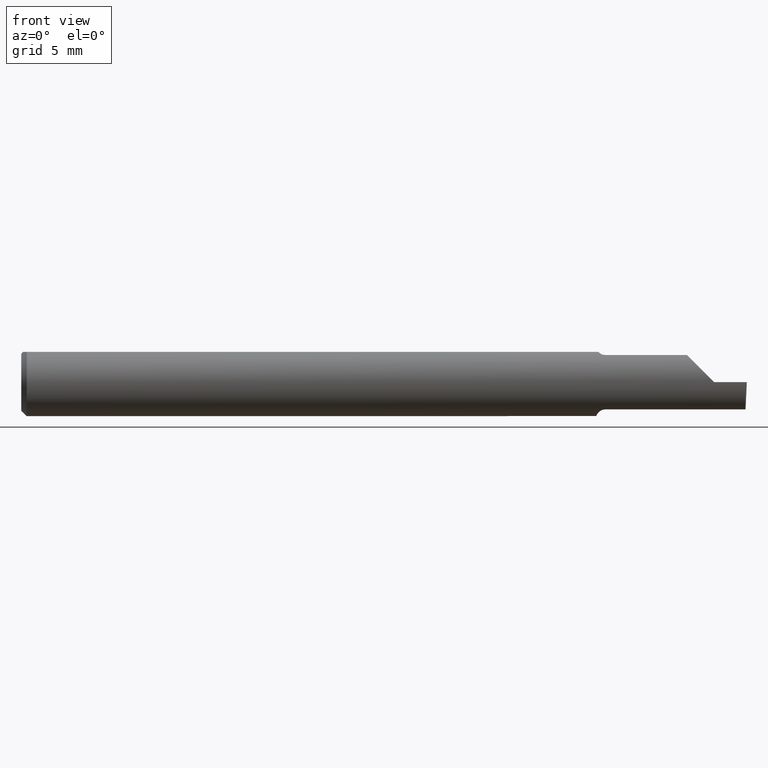
[diagram: clean part render]
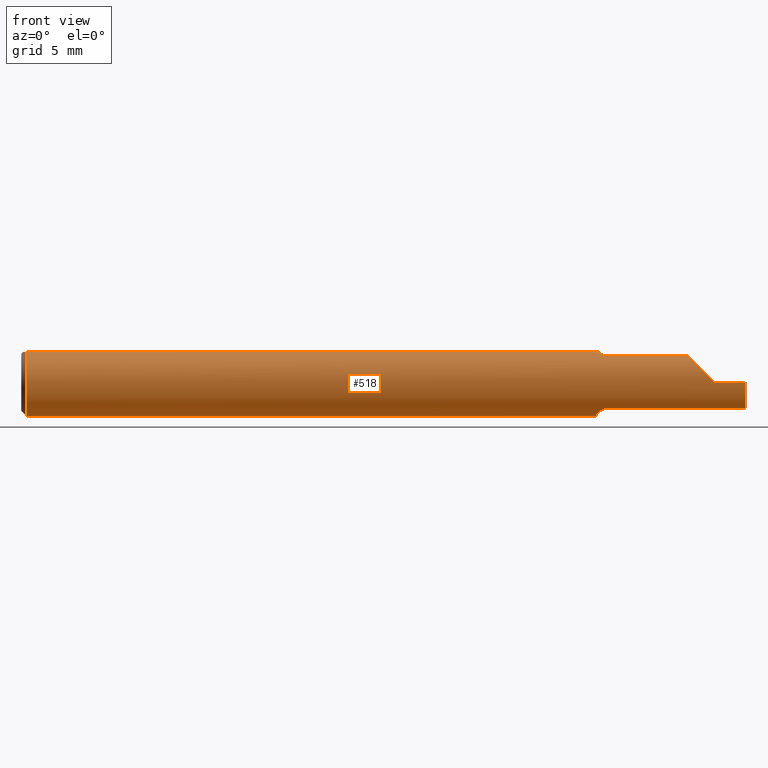
[diagram: same view with one face highlighted and labeled with its STEP entity id]
A machine part, front view. The second image highlights one B-rep face of the part: STEP entity #518.
In plain terms, the highlighted cylindrical surface (edge-blend (fillet) strip) has radius 2.3774 mm, axis along (-1, -0, -0).
Its self-contained STEP definition (entity closure, byte-faithful):
#1 = FACE_OUTER_BOUND ( 'NONE', #619, .T. ) ;
#4 = CARTESIAN_POINT ( 'NONE',  ( 1.591356684838558300, -0.04259999999999997122, -0.08334386600104412568 ) ) ;
#13 = EDGE_CURVE ( 'NONE', #521, #623, #548, .T. ) ;
#33 = VERTEX_POINT ( 'NONE', #618 ) ;
#43 = VERTEX_POINT ( 'NONE', #320 ) ;
#47 = CARTESIAN_POINT ( 'NONE',  ( 0.01499999999999999944, -0.04209513035969836975, 0.08359999999999999376 ) ) ;
#54 = ORIENTED_EDGE ( 'NONE', *, *, #311, .F. ) ;
#57 = VERTEX_POINT ( 'NONE', #558 ) ;
#58 = CARTESIAN_POINT ( 'NONE',  ( 0.000000000000000000, 0.000000000000000000, 0.000000000000000000 ) ) ;
#63 = CARTESIAN_POINT ( 'NONE',  ( 1.605389671955115727, -0.05750350940205799927, -0.07386306649500064270 ) ) ;
#64 = CARTESIAN_POINT ( 'NONE',  ( 0.000000000000000000, 0.04209513035969836975, 0.08359999999999999376 ) ) ;
#66 = CARTESIAN_POINT ( 'NONE',  ( 1.599728336617688651, -0.05428341532129050961, -0.07627162539867091140 ) ) ;
#70 = CARTESIAN_POINT ( 'NONE',  ( 1.792249999999999899, -0.05810704225352112534, -0.07337936794867826185 ) ) ;
#73 = CARTESIAN_POINT ( 'NONE',  ( 1.609999999999999654, -0.05810704225352114616, 0.07337936794867824797 ) ) ;
#76 = ORIENTED_EDGE ( 'NONE', *, *, #250, .F. ) ;
#79 = CARTESIAN_POINT ( 'NONE',  ( 1.607655343791670077, -0.05810704225352127106, 0.07337936794867813695 ) ) ;
#97 = CARTESIAN_POINT ( 'NONE',  ( 1.910000000000000142, -0.09359999999999998876, 1.102182119232621301E-17 ) ) ;
#111 = VECTOR ( 'NONE', #657, 39.37007874015748143 ) ;
#112 = CARTESIAN_POINT ( 'NONE',  ( 1.880893035518783396, -0.09359999999999998876, 0.02910696448121675300 ) ) ;
#117 = B_SPLINE_CURVE_WITH_KNOTS ( 'NONE', 3,
 ( #369, #181, #63, #616, #66, #307, #539, #4 ),
 .UNSPECIFIED., .F., .F.,
 ( 4, 2, 2, 4 ),
 ( 1.968126669309311202E-07, 0.0001761966947278539039, 0.0003521965767887768836, 0.0007041963409106363411 ),
 .UNSPECIFIED. ) ;
#127 = ORIENTED_EDGE ( 'NONE', *, *, #774, .F. ) ;
#135 = B_SPLINE_CURVE_WITH_KNOTS ( 'NONE', 3,
 ( #691, #213, #687, #450 ),
 .UNSPECIFIED., .F., .F.,
 ( 4, 4 ),
 ( 4.741820243502701581E-07, 1.584523690453573094E-05 ),
 .UNSPECIFIED. ) ;
#143 = CARTESIAN_POINT ( 'NONE',  ( 1.593098441794897902, -0.04641417426599063478, 0.08139430652501544738 ) ) ;
#149 = B_SPLINE_CURVE_WITH_KNOTS ( 'NONE', 3,
 ( #313, #679, #185, #316, #552, #662 ),
 .UNSPECIFIED., .F., .F.,
 ( 4, 2, 4 ),
 ( 0.0007041963409106363411, 0.001193146413573859584, 0.001682096486237082827 ),
 .UNSPECIFIED. ) ;
#153 = CARTESIAN_POINT ( 'NONE',  ( 1.591356684838558300, -0.04259999999999997816, 0.08334386600104415344 ) ) ;
#155 = LINE ( 'NONE', #449, #487 ) ;
#157 = CARTESIAN_POINT ( 'NONE',  ( 1.595259025420518784, -0.04992838138009422083, 0.07925011723318650669 ) ) ;
#165 = VECTOR ( 'NONE', #573, 39.37007874015748143 ) ;
#169 = CARTESIAN_POINT ( 'NONE',  ( 1.609999999999999654, -0.05810704225352111146, -0.07337936794867826185 ) ) ;
#174 = DIRECTION ( 'NONE',  ( 0.000000000000000000, 0.000000000000000000, 1.000000000000000000 ) ) ;
#175 = VERTEX_POINT ( 'NONE', #266 ) ;
#181 = CARTESIAN_POINT ( 'NONE',  ( 1.607653034764491506, -0.05810704225352129881, -0.07337936794867812307 ) ) ;
#185 = CARTESIAN_POINT ( 'NONE',  ( 1.587415450430337271, -0.03151229630690470518, -0.08835846806355296401 ) ) ;
#204 = CARTESIAN_POINT ( 'NONE',  ( 1.591129652885479029, -0.04209513035970094408, 0.08359999999999999376 ) ) ;
#213 = CARTESIAN_POINT ( 'NONE',  ( 1.591204482410373933, -0.04226411763296330365, 0.08351490979309549034 ) ) ;
#215 = EDGE_CURVE ( 'NONE', #57, #599, #776, .T. ) ;
#221 = ORIENTED_EDGE ( 'NONE', *, *, #295, .F. ) ;
#226 = CARTESIAN_POINT ( 'NONE',  ( 1.910000000000000142, -0.09359999999999998876, 1.102182119232621301E-17 ) ) ;
#229 = AXIS2_PLACEMENT_3D ( 'NONE', #58, #781, #602 ) ;
#231 = CARTESIAN_POINT ( 'NONE',  ( 1.591356684838558300, -0.04259999999999997122, -0.08334386600104412568 ) ) ;
#245 = DIRECTION ( 'NONE',  ( -1.000000000000000000, -0.000000000000000000, -0.000000000000000000 ) ) ;
#250 = EDGE_CURVE ( 'NONE', #604, #57, #135, .T. ) ;
#257 = ORIENTED_EDGE ( 'NONE', *, *, #491, .F. ) ;
#266 = CARTESIAN_POINT ( 'NONE',  ( 1.836620632051322310, -0.05810704225352113922, 0.07337936794867826185 ) ) ;
#269 = CARTESIAN_POINT ( 'NONE',  ( 1.599746577633803568, -0.05429945193459817521, 0.07626038032150797563 ) ) ;
#284 =( BOUNDED_CURVE ( )  B_SPLINE_CURVE ( 3, ( #522, #772, #460, #407 ),
 .UNSPECIFIED., .F., .F. ) 
 B_SPLINE_CURVE_WITH_KNOTS ( ( 4, 4 ),
 ( 0.08204942185700578317, 0.9826237902196912621 ),
 .UNSPECIFIED. ) 
 CURVE ( )  GEOMETRIC_REPRESENTATION_ITEM ( )  RATIONAL_B_SPLINE_CURVE ( ( 1.000000000000000000, 0.9335481000009943076, 0.9335481000009943076, 1.000000000000000000 ) ) 
 REPRESENTATION_ITEM ( '' )  );
#285 = CARTESIAN_POINT ( 'NONE',  ( 1.854690286057537829, -0.08092595952420826577, 0.05530971394246238237 ) ) ;
#288 = LINE ( 'NONE', #344, #318 ) ;
#291 = VERTEX_POINT ( 'NONE', #574 ) ;
#293 = CARTESIAN_POINT ( 'NONE',  ( 1.792249999999999899, -0.05810704225352112534, 0.07337936794867826185 ) ) ;
#295 = EDGE_CURVE ( 'NONE', #647, #521, #404, .T. ) ;
#302 = DIRECTION ( 'NONE',  ( -1.000000000000000000, -0.000000000000000000, -0.000000000000000000 ) ) ;
#307 = CARTESIAN_POINT ( 'NONE',  ( 1.595264545693809044, -0.04993027844100268037, -0.07924826417278514612 ) ) ;
#311 = EDGE_CURVE ( 'NONE', #599, #175, #477, .T. ) ;
#313 = CARTESIAN_POINT ( 'NONE',  ( 1.591356684838558300, -0.04259999999999997122, -0.08334386600104412568 ) ) ;
#316 = CARTESIAN_POINT ( 'NONE',  ( 1.585436655799338901, -0.01945041057485635827, -0.09177104786119411051 ) ) ;
#318 = VECTOR ( 'NONE', #411, 39.37007874015748143 ) ;
#320 = CARTESIAN_POINT ( 'NONE',  ( 1.995486889784650497, -0.05810704225352112534, -0.07337936794867826185 ) ) ;
#322 = LINE ( 'NONE', #394, #165 ) ;
#332 = CARTESIAN_POINT ( 'NONE',  ( 1.609999999999999654, -0.05810704225352114616, 0.07337936794867824797 ) ) ;
#343 = VERTEX_POINT ( 'NONE', #47 ) ;
#344 = CARTESIAN_POINT ( 'NONE',  ( 0.000000000000000000, -0.04209513035969836975, 0.08359999999999999376 ) ) ;
#346 = VERTEX_POINT ( 'NONE', #536 ) ;
#354 = VERTEX_POINT ( 'NONE', #231 ) ;
#355 = CARTESIAN_POINT ( 'NONE',  ( 1.836620632051322310, -0.05810704225352113922, 0.07337936794867826185 ) ) ;
#363 = VECTOR ( 'NONE', #245, 39.37007874015748143 ) ;
#369 = CARTESIAN_POINT ( 'NONE',  ( 1.609999999999999654, -0.05810704225352111146, -0.07337936794867826185 ) ) ;
#377 = EDGE_CURVE ( 'NONE', #623, #291, #617, .T. ) ;
#392 = AXIS2_PLACEMENT_3D ( 'NONE', #724, #302, #546 ) ;
#394 = CARTESIAN_POINT ( 'NONE',  ( 2.999519565323743132E-32, -0.09359999999999998876, 2.449293598294717754E-16 ) ) ;
#402 = CIRCLE ( 'NONE', #392, 0.09359999999999998876 ) ;
#404 = CIRCLE ( 'NONE', #645, 0.09359999999999998876 ) ;
#406 = VERTEX_POINT ( 'NONE', #97 ) ;
#407 = CARTESIAN_POINT ( 'NONE',  ( 1.996788249052547481, -0.09359999022555406945, -4.277588313357508156E-05 ) ) ;
#411 = DIRECTION ( 'NONE',  ( 1.000000000000000000, 0.000000000000000000, 0.000000000000000000 ) ) ;
#413 = VERTEX_POINT ( 'NONE', #169 ) ;
#415 = CARTESIAN_POINT ( 'NONE',  ( 0.01499999999999999944, 0.000000000000000000, 0.000000000000000000 ) ) ;
#449 = CARTESIAN_POINT ( 'NONE',  ( 1.994172072281005459, -0.09355431490906530867, -0.09996576130738767108 ) ) ;
#450 = CARTESIAN_POINT ( 'NONE',  ( 1.591356684838558300, -0.04259999999999997816, 0.08334386600104415344 ) ) ;
#455 = ORIENTED_EDGE ( 'NONE', *, *, #468, .F. ) ;
#460 = CARTESIAN_POINT ( 'NONE',  ( 1.996026586675631709, -0.09358669535931163352, -0.02913391928411206838 ) ) ;
#464 = AXIS2_PLACEMENT_3D ( 'NONE', #415, #642, #174 ) ;
#468 = EDGE_CURVE ( 'NONE', #291, #343, #402, .T. ) ;
#470 = EDGE_CURVE ( 'NONE', #413, #354, #117, .T. ) ;
#477 = LINE ( 'NONE', #293, #111 ) ;
#482 = CYLINDRICAL_SURFACE ( 'NONE', #229, 0.09359999999999998876 ) ;
#487 = VECTOR ( 'NONE', #694, 39.37007874015748854 ) ;
#491 = EDGE_CURVE ( 'NONE', #354, #647, #149, .T. ) ;
#493 =( BOUNDED_CURVE ( )  B_SPLINE_CURVE ( 3, ( #226, #112, #285, #355 ),
 .UNSPECIFIED., .F., .T. ) 
 B_SPLINE_CURVE_WITH_KNOTS ( ( 4, 4 ),
 ( 4.712388980384689674, 5.613420356061718408 ),
 .UNSPECIFIED. ) 
 CURVE ( )  GEOMETRIC_REPRESENTATION_ITEM ( )  RATIONAL_B_SPLINE_CURVE ( ( 1.000000000000000000, 0.9334817841311876530, 0.9334817841311876530, 1.000000000000000000 ) ) 
 REPRESENTATION_ITEM ( '' )  );
#504 = ORIENTED_EDGE ( 'NONE', *, *, #215, .F. ) ;
#507 = CARTESIAN_POINT ( 'NONE',  ( 1.605389214148233989, -0.05750155061631040398, 0.07386444488392698848 ) ) ;
#517 = ORIENTED_EDGE ( 'NONE', *, *, #470, .F. ) ;
#518 = ADVANCED_FACE ( 'NONE', ( #1 ), #482, .T. ) ;
#521 = VERTEX_POINT ( 'NONE', #732 ) ;
#522 = CARTESIAN_POINT ( 'NONE',  ( 1.995486889784650497, -0.05810704225352112534, -0.07337936794867826185 ) ) ;
#528 = EDGE_CURVE ( 'NONE', #43, #413, #736, .T. ) ;
#536 = CARTESIAN_POINT ( 'NONE',  ( 1.996789369178486595, -0.09359999999634724399, 1.727064904157919157E-17 ) ) ;
#539 = CARTESIAN_POINT ( 'NONE',  ( 1.593086474849918499, -0.04638796853538176834, -0.08140770120152256151 ) ) ;
#546 = DIRECTION ( 'NONE',  ( 0.000000000000000000, 0.000000000000000000, 1.000000000000000000 ) ) ;
#548 = LINE ( 'NONE', #64, #363 ) ;
#552 = CARTESIAN_POINT ( 'NONE',  ( 1.584999999999999520, -0.01308640439514264717, -0.09289765197734373148 ) ) ;
#558 = CARTESIAN_POINT ( 'NONE',  ( 1.591356684838558300, -0.04259999999999997816, 0.08334386600104415344 ) ) ;
#560 = CARTESIAN_POINT ( 'NONE',  ( 1.601469028275930517, -0.05559939362423894915, 0.07530665289274067475 ) ) ;
#570 = CARTESIAN_POINT ( 'NONE',  ( 1.584999999999999520, 0.000000000000000000, 0.000000000000000000 ) ) ;
#573 = DIRECTION ( 'NONE',  ( -1.000000000000000000, -0.000000000000000000, -0.000000000000000000 ) ) ;
#574 = CARTESIAN_POINT ( 'NONE',  ( 0.01499999999999999944, 0.000000000000000000, -0.09359999999999998876 ) ) ;
#579 = ORIENTED_EDGE ( 'NONE', *, *, #667, .T. ) ;
#593 = DIRECTION ( 'NONE',  ( 1.000000000000000000, 0.000000000000000000, 0.000000000000000000 ) ) ;
#599 = VERTEX_POINT ( 'NONE', #73 ) ;
#602 = DIRECTION ( 'NONE',  ( 0.000000000000000000, 0.000000000000000000, 1.000000000000000000 ) ) ;
#604 = VERTEX_POINT ( 'NONE', #204 ) ;
#606 = EDGE_CURVE ( 'NONE', #346, #406, #322, .T. ) ;
#616 = CARTESIAN_POINT ( 'NONE',  ( 1.601446782524424073, -0.05558685324519236498, -0.07531605361338915283 ) ) ;
#617 = CIRCLE ( 'NONE', #464, 0.09359999999999998876 ) ;
#618 = CARTESIAN_POINT ( 'NONE',  ( 1.996788249052547481, -0.09359999022555406945, -4.277588313357508156E-05 ) ) ;
#619 = EDGE_LOOP ( 'NONE', ( #738, #579, #713, #742, #54, #504, #76, #127, #455, #677, #702, #221, #257, #517, #639 ) ) ;
#623 = VERTEX_POINT ( 'NONE', #631 ) ;
#624 = CARTESIAN_POINT ( 'NONE',  ( 1.584999999999999520, -0.006757276995305157297, -0.09335576686851604356 ) ) ;
#631 = CARTESIAN_POINT ( 'NONE',  ( 0.01499999999999999598, 0.04209513035969836975, 0.08359999999999999376 ) ) ;
#639 = ORIENTED_EDGE ( 'NONE', *, *, #528, .F. ) ;
#642 = DIRECTION ( 'NONE',  ( -1.000000000000000000, -0.000000000000000000, -0.000000000000000000 ) ) ;
#645 = AXIS2_PLACEMENT_3D ( 'NONE', #570, #593, #646 ) ;
#646 = DIRECTION ( 'NONE',  ( 0.000000000000000000, 0.000000000000000000, -1.000000000000000000 ) ) ;
#647 = VERTEX_POINT ( 'NONE', #624 ) ;
#657 = DIRECTION ( 'NONE',  ( 1.000000000000000000, 0.000000000000000000, 0.000000000000000000 ) ) ;
#662 = CARTESIAN_POINT ( 'NONE',  ( 1.584999999999999520, -0.006757276995305157297, -0.09335576686851604356 ) ) ;
#667 = EDGE_CURVE ( 'NONE', #33, #346, #155, .T. ) ;
#669 = VECTOR ( 'NONE', #729, 39.37007874015748143 ) ;
#677 = ORIENTED_EDGE ( 'NONE', *, *, #377, .F. ) ;
#679 = CARTESIAN_POINT ( 'NONE',  ( 1.588953896433696000, -0.03733827064844358334, -0.08603332211978831356 ) ) ;
#687 = CARTESIAN_POINT ( 'NONE',  ( 1.591280153739604630, -0.04243240890922537339, 0.08342952773968856373 ) ) ;
#691 = CARTESIAN_POINT ( 'NONE',  ( 1.591129652885479029, -0.04209513035970094408, 0.08359999999999999376 ) ) ;
#694 = DIRECTION ( 'NONE',  ( 0.02617296143184116158, -0.0004568507411563392279, 0.9996573249755575929 ) ) ;
#702 = ORIENTED_EDGE ( 'NONE', *, *, #13, .F. ) ;
#713 = ORIENTED_EDGE ( 'NONE', *, *, #606, .T. ) ;
#714 = EDGE_CURVE ( 'NONE', #43, #33, #284, .T. ) ;
#718 = EDGE_CURVE ( 'NONE', #406, #175, #493, .T. ) ;
#724 = CARTESIAN_POINT ( 'NONE',  ( 0.01499999999999999944, 0.000000000000000000, 0.000000000000000000 ) ) ;
#729 = DIRECTION ( 'NONE',  ( -1.000000000000000000, -0.000000000000000000, -0.000000000000000000 ) ) ;
#732 = CARTESIAN_POINT ( 'NONE',  ( 1.584999999999999520, 0.04209513035969834893, 0.08359999999999999376 ) ) ;
#736 = LINE ( 'NONE', #70, #669 ) ;
#738 = ORIENTED_EDGE ( 'NONE', *, *, #714, .T. ) ;
#742 = ORIENTED_EDGE ( 'NONE', *, *, #718, .T. ) ;
#772 = CARTESIAN_POINT ( 'NONE',  ( 1.995561922431088098, -0.08091355869144019330, -0.05531953381055033925 ) ) ;
#774 = EDGE_CURVE ( 'NONE', #343, #604, #288, .T. ) ;
#776 = B_SPLINE_CURVE_WITH_KNOTS ( 'NONE', 3,
 ( #153, #143, #157, #269, #560, #507, #79, #332 ),
 .UNSPECIFIED., .F., .F.,
 ( 4, 2, 2, 4 ),
 ( 1.584523690453573094E-05, 0.0003656721978374746925, 0.0005405856783039505531, 0.0007154991587704265764 ),
 .UNSPECIFIED. ) ;
#781 = DIRECTION ( 'NONE',  ( -1.000000000000000000, -0.000000000000000000, -0.000000000000000000 ) ) ;